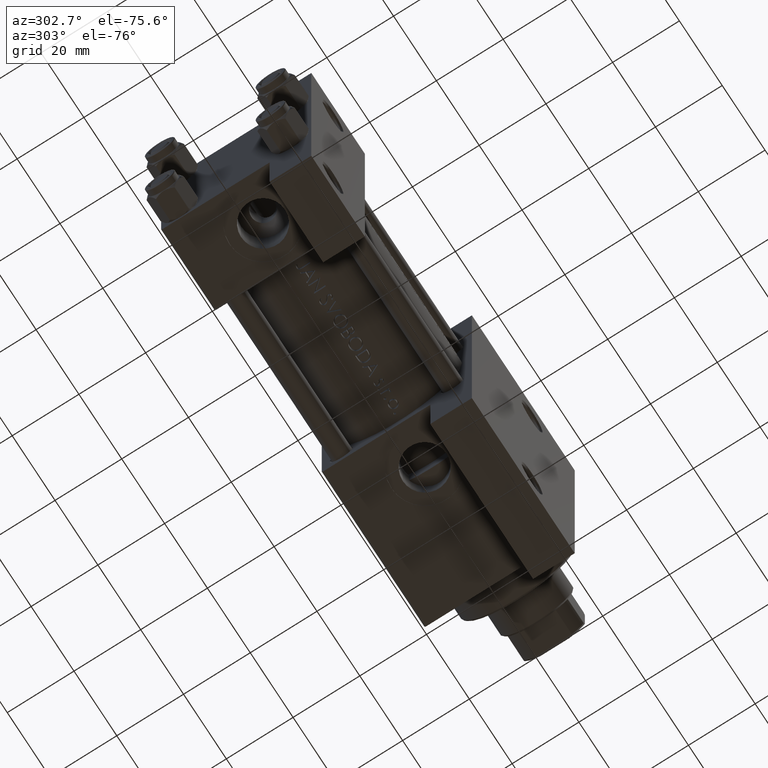
[diagram: clean part render]
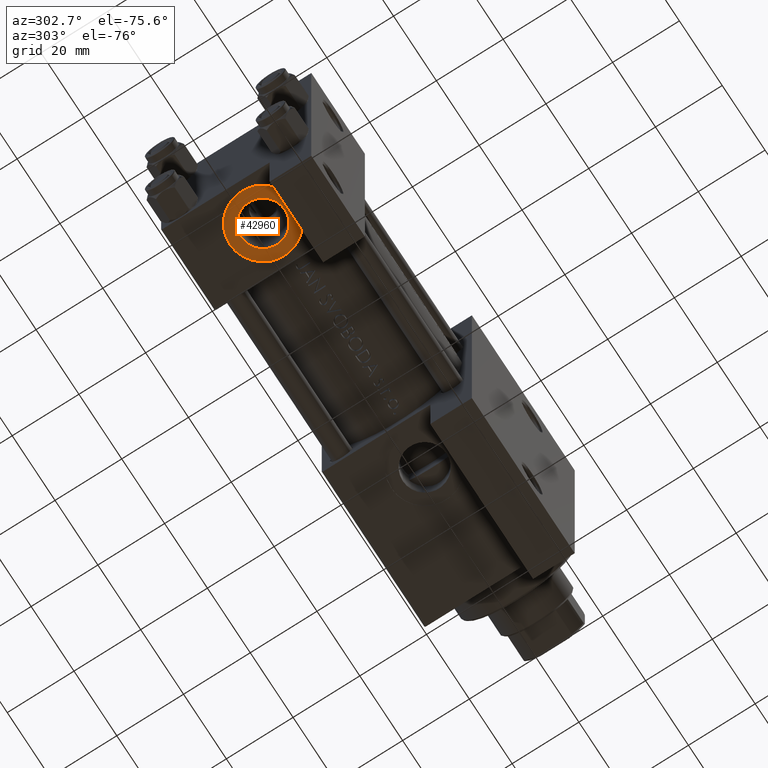
[diagram: same view with one face highlighted and labeled with its STEP entity id]
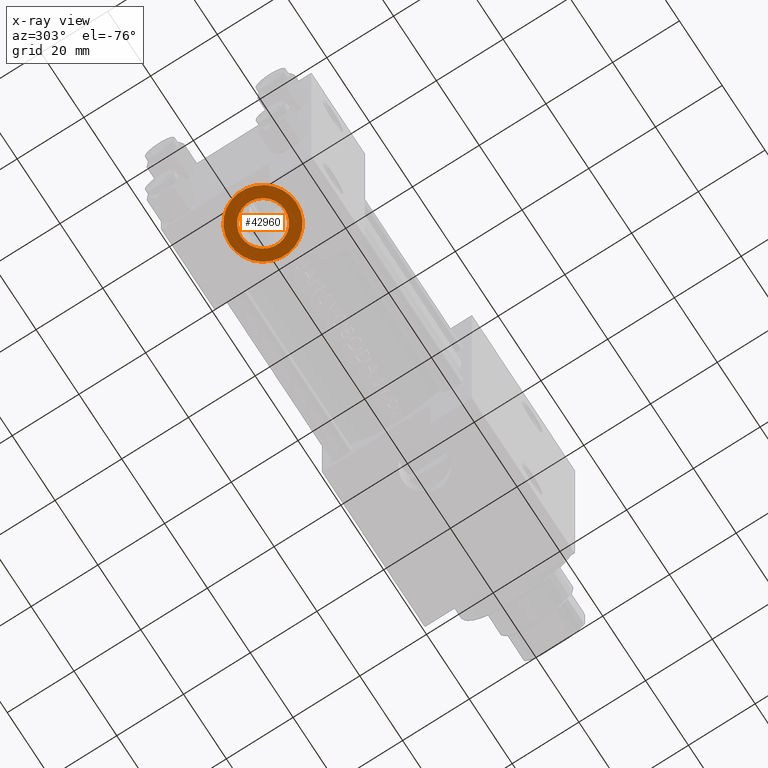
[diagram: x-ray of the same camera — body ghosted, the highlighted face saturated]
A machine part, auxiliary view. The second image highlights one B-rep face of the part: STEP entity #42960.
The next image is the same camera in x-ray: the body ghosted, the highlighted face saturated — about 0% of this face is hidden behind the body in this view.
In plain terms, the highlighted planar face has unit normal (0, 0, -1).
Its self-contained STEP definition (entity closure, byte-faithful):
#2628 = CARTESIAN_POINT ( 'NONE',  ( 12.50000000000000000, 22.30000000000000071, 0.000000000000000000 ) ) ;
#4137 = VERTEX_POINT ( 'NONE', #47112 ) ;
#4920 = CIRCLE ( 'NONE', #33337, 6.579999999999998295 ) ;
#6477 = DIRECTION ( 'NONE',  ( 0.000000000000000000, 0.000000000000000000, 1.000000000000000000 ) ) ;
#7087 = EDGE_CURVE ( 'NONE', #4137, #13504, #15680, .T. ) ;
#8255 = DIRECTION ( 'NONE',  ( 0.000000000000000000, 0.000000000000000000, 1.000000000000000000 ) ) ;
#8957 = CARTESIAN_POINT ( 'NONE',  ( 12.50000000000000000, 22.30000000000000071, 0.000000000000000000 ) ) ;
#10505 = AXIS2_PLACEMENT_3D ( 'NONE', #39413, #24496, #6477 ) ;
#11614 = EDGE_CURVE ( 'NONE', #15207, #41593, #16650, .T. ) ;
#11720 = AXIS2_PLACEMENT_3D ( 'NONE', #8957, #31074, #27238 ) ;
#12334 = CARTESIAN_POINT ( 'NONE',  ( 12.50000000000000000, 22.30000000000000071, 0.000000000000000000 ) ) ;
#13504 = VERTEX_POINT ( 'NONE', #34205 ) ;
#15207 = VERTEX_POINT ( 'NONE', #47508 ) ;
#15389 = FACE_BOUND ( 'NONE', #31250, .T. ) ;
#15529 = CIRCLE ( 'NONE', #11720, 9.999999999999996447 ) ;
#15680 = CIRCLE ( 'NONE', #46416, 6.579999999999998295 ) ;
#16650 = CIRCLE ( 'NONE', #10505, 9.999999999999996447 ) ;
#21140 = ORIENTED_EDGE ( 'NONE', *, *, #7087, .F. ) ;
#21384 = DIRECTION ( 'NONE',  ( 0.000000000000000000, 0.000000000000000000, 1.000000000000000000 ) ) ;
#21674 = ORIENTED_EDGE ( 'NONE', *, *, #47551, .F. ) ;
#22713 = CARTESIAN_POINT ( 'NONE',  ( 12.50000000000000000, 22.30000000000000071, 9.999999999999996447 ) ) ;
#22836 = DIRECTION ( 'NONE',  ( 0.000000000000000000, -0.000000000000000000, 1.000000000000000000 ) ) ;
#23511 = ORIENTED_EDGE ( 'NONE', *, *, #38463, .T. ) ;
#24496 = DIRECTION ( 'NONE',  ( 0.000000000000000000, 1.000000000000000000, 0.000000000000000000 ) ) ;
#26452 = DIRECTION ( 'NONE',  ( 0.000000000000000000, 1.000000000000000000, 0.000000000000000000 ) ) ;
#27009 = DIRECTION ( 'NONE',  ( 0.000000000000000000, 1.000000000000000000, 0.000000000000000000 ) ) ;
#27238 = DIRECTION ( 'NONE',  ( 0.000000000000000000, 0.000000000000000000, 1.000000000000000000 ) ) ;
#30061 = CARTESIAN_POINT ( 'NONE',  ( 12.50000000000000000, 22.30000000000000071, 0.000000000000000000 ) ) ;
#30139 = AXIS2_PLACEMENT_3D ( 'NONE', #30061, #26452, #22836 ) ;
#31074 = DIRECTION ( 'NONE',  ( 0.000000000000000000, 1.000000000000000000, 0.000000000000000000 ) ) ;
#31250 = EDGE_LOOP ( 'NONE', ( #21674, #21140 ) ) ;
#33337 = AXIS2_PLACEMENT_3D ( 'NONE', #12334, #27009, #8255 ) ;
#34139 = FACE_OUTER_BOUND ( 'NONE', #47604, .T. ) ;
#34205 = CARTESIAN_POINT ( 'NONE',  ( 12.50000000000000000, 22.30000000000000071, 6.579999999999998295 ) ) ;
#37505 = PLANE ( 'NONE',  #30139 ) ;
#38463 = EDGE_CURVE ( 'NONE', #41593, #15207, #15529, .T. ) ;
#39413 = CARTESIAN_POINT ( 'NONE',  ( 12.50000000000000000, 22.30000000000000071, 0.000000000000000000 ) ) ;
#39653 = DIRECTION ( 'NONE',  ( 0.000000000000000000, 1.000000000000000000, 0.000000000000000000 ) ) ;
#41593 = VERTEX_POINT ( 'NONE', #22713 ) ;
#42017 = ORIENTED_EDGE ( 'NONE', *, *, #11614, .T. ) ;
#42960 = ADVANCED_FACE ( 'NONE', ( #15389, #34139 ), #37505, .T. ) ;
#46416 = AXIS2_PLACEMENT_3D ( 'NONE', #2628, #39653, #21384 ) ;
#47112 = CARTESIAN_POINT ( 'NONE',  ( 12.50000000000000000, 22.30000000000000071, -6.579999999999998295 ) ) ;
#47508 = CARTESIAN_POINT ( 'NONE',  ( 12.50000000000000178, 22.30000000000000071, -9.999999999999996447 ) ) ;
#47551 = EDGE_CURVE ( 'NONE', #13504, #4137, #4920, .T. ) ;
#47604 = EDGE_LOOP ( 'NONE', ( #23511, #42017 ) ) ;